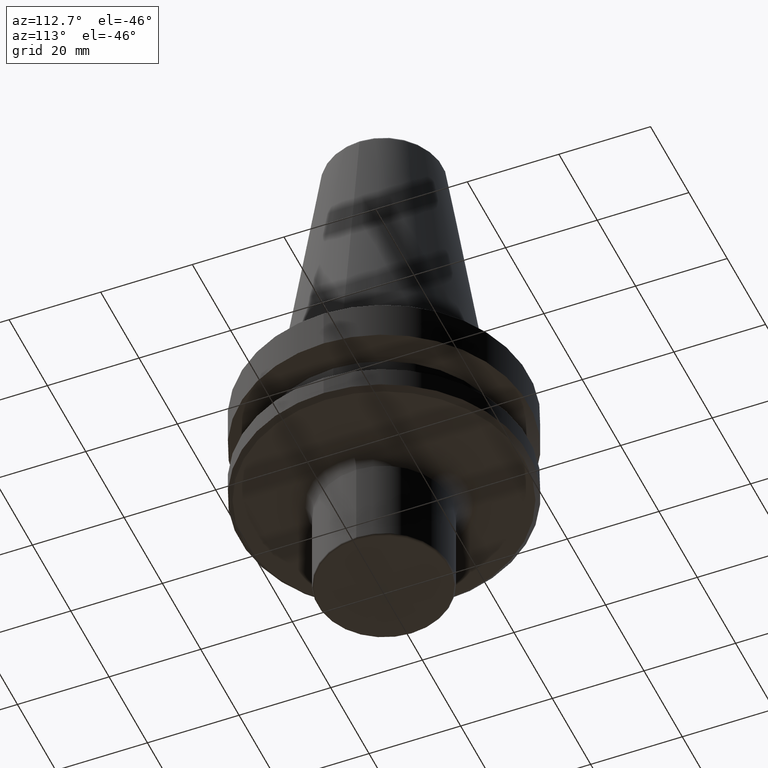
[diagram: clean part render]
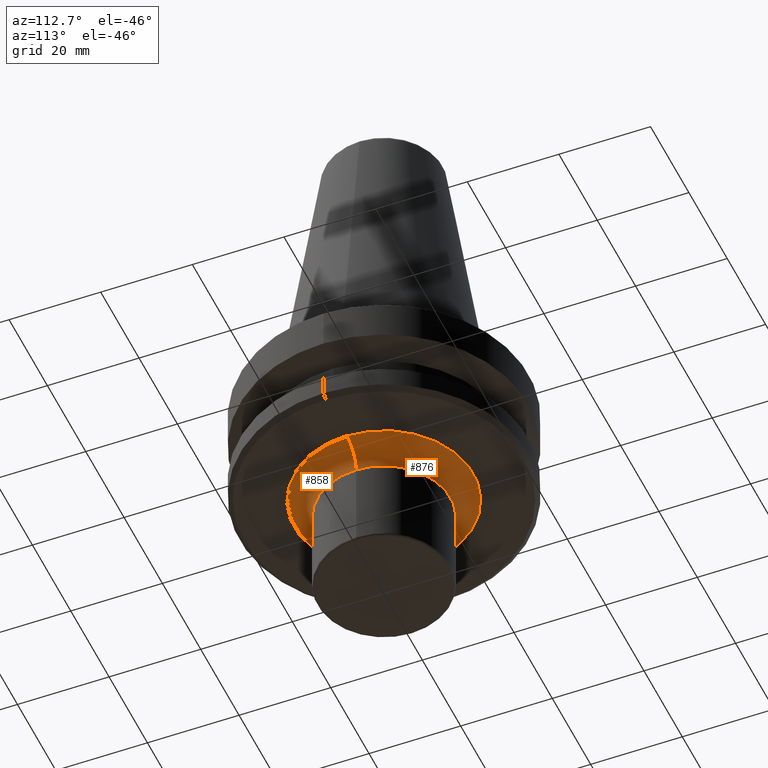
[diagram: same view with one multi-face feature highlighted, each face labeled with its STEP entity id]
A machine part, auxiliary view. The highlighted faces form ONE feature: a constant-radius fillet chain: 2 tangent blend faces with common blend radius 5 mm. The faces share edges in the B-rep.
Their STEP definitions:
[1] entity #876 (Torus):
#66 = CIRCLE ( 'NONE', #149, 4.999999999999997300 ) ;
#119 = DIRECTION ( 'NONE',  ( 0.0000000000000000000, -1.000000000000000000, 0.0000000000000000000 ) ) ;
#149 = AXIS2_PLACEMENT_3D ( 'NONE', #829, #997, #659 ) ;
#153 = DIRECTION ( 'NONE',  ( -0.0000000000000000000, -0.0000000000000000000, 1.000000000000000000 ) ) ;
#160 = EDGE_CURVE ( 'NONE', #541, #349, #869, .T. ) ;
#184 = AXIS2_PLACEMENT_3D ( 'NONE', #186, #956, #230 ) ;
#186 = CARTESIAN_POINT ( 'NONE',  ( 0.0000000000000000000, 0.0000000000000000000, -97.40000000000803500 ) ) ;
#230 = DIRECTION ( 'NONE',  ( 1.000000000000000000, 0.0000000000000000000, 0.0000000000000000000 ) ) ;
#239 = DIRECTION ( 'NONE',  ( -0.0000000000000000000, -0.0000000000000000000, 1.000000000000000000 ) ) ;
#247 = ORIENTED_EDGE ( 'NONE', *, *, #258, .T. ) ;
#258 = EDGE_CURVE ( 'NONE', #768, #298, #1003, .T. ) ;
#282 = EDGE_CURVE ( 'NONE', #541, #768, #756, .T. ) ;
#288 = CARTESIAN_POINT ( 'NONE',  ( 19.49999999999999600, 0.0000000000000000000, -92.40000000000803500 ) ) ;
#298 = VERTEX_POINT ( 'NONE', #485 ) ;
#349 = VERTEX_POINT ( 'NONE', #571 ) ;
#414 = CARTESIAN_POINT ( 'NONE',  ( 14.50000000000000200, 0.0000000000000000000, -97.40000000000803500 ) ) ;
#458 = AXIS2_PLACEMENT_3D ( 'NONE', #967, #239, #999 ) ;
#485 = CARTESIAN_POINT ( 'NONE',  ( -14.50000000000000200, 2.081899558550500300E-015, -97.40000000000803500 ) ) ;
#541 = VERTEX_POINT ( 'NONE', #288 ) ;
#571 = CARTESIAN_POINT ( 'NONE',  ( -19.49999999999999600, 2.388061258337338900E-015, -92.40000000000803500 ) ) ;
#625 = AXIS2_PLACEMENT_3D ( 'NONE', #740, #119, #651 ) ;
#651 = DIRECTION ( 'NONE',  ( 0.0000000000000000000, 0.0000000000000000000, -1.000000000000000000 ) ) ;
#653 = EDGE_LOOP ( 'NONE', ( #855, #1025, #707, #247 ) ) ;
#659 = DIRECTION ( 'NONE',  ( -1.000000000000000000, 1.224646799147353500E-016, 0.0000000000000000000 ) ) ;
#707 = ORIENTED_EDGE ( 'NONE', *, *, #282, .T. ) ;
#712 = EDGE_CURVE ( 'NONE', #349, #298, #66, .T. ) ;
#714 = DIRECTION ( 'NONE',  ( 1.000000000000000000, 0.0000000000000000000, 0.0000000000000000000 ) ) ;
#735 = CARTESIAN_POINT ( 'NONE',  ( 0.0000000000000000000, 0.0000000000000000000, -92.40000000000803500 ) ) ;
#740 = CARTESIAN_POINT ( 'NONE',  ( 19.49999999999999600, 0.0000000000000000000, -97.40000000000803500 ) ) ;
#756 = CIRCLE ( 'NONE', #625, 5.000000000000004400 ) ;
#763 = FACE_OUTER_BOUND ( 'NONE', #653, .T. ) ;
#768 = VERTEX_POINT ( 'NONE', #414 ) ;
#829 = CARTESIAN_POINT ( 'NONE',  ( -19.49999999999999600, 2.388061258337338500E-015, -97.40000000000803500 ) ) ;
#855 = ORIENTED_EDGE ( 'NONE', *, *, #712, .F. ) ;
#869 = CIRCLE ( 'NONE', #962, 19.49999999999999600 ) ;
#876 = ADVANCED_FACE ( 'NONE', ( #763 ), #984, .F. ) ;
#956 = DIRECTION ( 'NONE',  ( -0.0000000000000000000, -0.0000000000000000000, 1.000000000000000000 ) ) ;
#962 = AXIS2_PLACEMENT_3D ( 'NONE', #735, #153, #714 ) ;
#967 = CARTESIAN_POINT ( 'NONE',  ( 0.0000000000000000000, 0.0000000000000000000, -97.40000000000803500 ) ) ;
#984 = TOROIDAL_SURFACE ( 'NONE', #184, 19.49999999999999600, 4.999999999999999100 ) ;
#997 = DIRECTION ( 'NONE',  ( 1.224646799147353200E-016, 1.000000000000000000, 0.0000000000000000000 ) ) ;
#999 = DIRECTION ( 'NONE',  ( 1.000000000000000000, 0.0000000000000000000, 0.0000000000000000000 ) ) ;
#1003 = CIRCLE ( 'NONE', #458, 14.50000000000000200 ) ;
#1025 = ORIENTED_EDGE ( 'NONE', *, *, #160, .F. ) ;
[2] entity #858 (Torus):
#4 = DIRECTION ( 'NONE',  ( 1.000000000000000000, 0.0000000000000000000, 0.0000000000000000000 ) ) ;
#66 = CIRCLE ( 'NONE', #149, 4.999999999999997300 ) ;
#73 = AXIS2_PLACEMENT_3D ( 'NONE', #237, #670, #584 ) ;
#119 = DIRECTION ( 'NONE',  ( 0.0000000000000000000, -1.000000000000000000, 0.0000000000000000000 ) ) ;
#124 = FACE_OUTER_BOUND ( 'NONE', #224, .T. ) ;
#149 = AXIS2_PLACEMENT_3D ( 'NONE', #829, #997, #659 ) ;
#205 = TOROIDAL_SURFACE ( 'NONE', #73, 19.49999999999999600, 4.999999999999999100 ) ;
#224 = EDGE_LOOP ( 'NONE', ( #392, #348, #476, #945 ) ) ;
#228 = AXIS2_PLACEMENT_3D ( 'NONE', #491, #425, #279 ) ;
#237 = CARTESIAN_POINT ( 'NONE',  ( 0.0000000000000000000, 0.0000000000000000000, -97.40000000000803500 ) ) ;
#279 = DIRECTION ( 'NONE',  ( 1.000000000000000000, 0.0000000000000000000, 0.0000000000000000000 ) ) ;
#282 = EDGE_CURVE ( 'NONE', #541, #768, #756, .T. ) ;
#288 = CARTESIAN_POINT ( 'NONE',  ( 19.49999999999999600, 0.0000000000000000000, -92.40000000000803500 ) ) ;
#298 = VERTEX_POINT ( 'NONE', #485 ) ;
#315 = EDGE_CURVE ( 'NONE', #298, #768, #546, .T. ) ;
#348 = ORIENTED_EDGE ( 'NONE', *, *, #712, .T. ) ;
#349 = VERTEX_POINT ( 'NONE', #571 ) ;
#392 = ORIENTED_EDGE ( 'NONE', *, *, #421, .F. ) ;
#414 = CARTESIAN_POINT ( 'NONE',  ( 14.50000000000000200, 0.0000000000000000000, -97.40000000000803500 ) ) ;
#421 = EDGE_CURVE ( 'NONE', #349, #541, #903, .T. ) ;
#425 = DIRECTION ( 'NONE',  ( -0.0000000000000000000, -0.0000000000000000000, 1.000000000000000000 ) ) ;
#476 = ORIENTED_EDGE ( 'NONE', *, *, #315, .T. ) ;
#485 = CARTESIAN_POINT ( 'NONE',  ( -14.50000000000000200, 2.081899558550500300E-015, -97.40000000000803500 ) ) ;
#491 = CARTESIAN_POINT ( 'NONE',  ( 0.0000000000000000000, 0.0000000000000000000, -92.40000000000803500 ) ) ;
#541 = VERTEX_POINT ( 'NONE', #288 ) ;
#546 = CIRCLE ( 'NONE', #724, 14.50000000000000200 ) ;
#570 = DIRECTION ( 'NONE',  ( -0.0000000000000000000, -0.0000000000000000000, 1.000000000000000000 ) ) ;
#571 = CARTESIAN_POINT ( 'NONE',  ( -19.49999999999999600, 2.388061258337338900E-015, -92.40000000000803500 ) ) ;
#584 = DIRECTION ( 'NONE',  ( 1.000000000000000000, 0.0000000000000000000, 0.0000000000000000000 ) ) ;
#625 = AXIS2_PLACEMENT_3D ( 'NONE', #740, #119, #651 ) ;
#651 = DIRECTION ( 'NONE',  ( 0.0000000000000000000, 0.0000000000000000000, -1.000000000000000000 ) ) ;
#659 = DIRECTION ( 'NONE',  ( -1.000000000000000000, 1.224646799147353500E-016, 0.0000000000000000000 ) ) ;
#670 = DIRECTION ( 'NONE',  ( -0.0000000000000000000, -0.0000000000000000000, 1.000000000000000000 ) ) ;
#712 = EDGE_CURVE ( 'NONE', #349, #298, #66, .T. ) ;
#724 = AXIS2_PLACEMENT_3D ( 'NONE', #972, #570, #4 ) ;
#740 = CARTESIAN_POINT ( 'NONE',  ( 19.49999999999999600, 0.0000000000000000000, -97.40000000000803500 ) ) ;
#756 = CIRCLE ( 'NONE', #625, 5.000000000000004400 ) ;
#768 = VERTEX_POINT ( 'NONE', #414 ) ;
#829 = CARTESIAN_POINT ( 'NONE',  ( -19.49999999999999600, 2.388061258337338500E-015, -97.40000000000803500 ) ) ;
#858 = ADVANCED_FACE ( 'NONE', ( #124 ), #205, .F. ) ;
#903 = CIRCLE ( 'NONE', #228, 19.49999999999999600 ) ;
#945 = ORIENTED_EDGE ( 'NONE', *, *, #282, .F. ) ;
#972 = CARTESIAN_POINT ( 'NONE',  ( 0.0000000000000000000, 0.0000000000000000000, -97.40000000000803500 ) ) ;
#997 = DIRECTION ( 'NONE',  ( 1.224646799147353200E-016, 1.000000000000000000, 0.0000000000000000000 ) ) ;